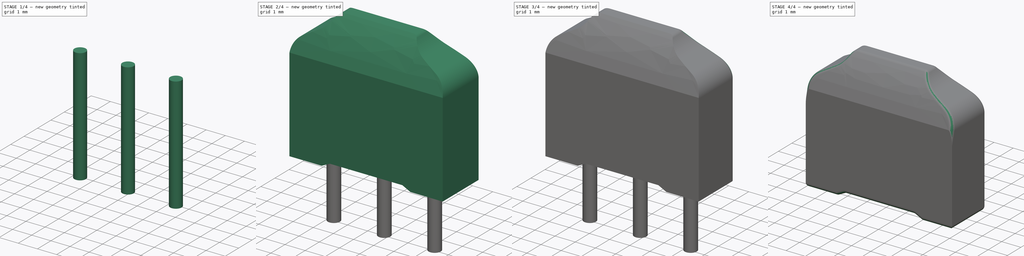
[diagram: build sequence overview — one tinted view per stage of 4, left to right]
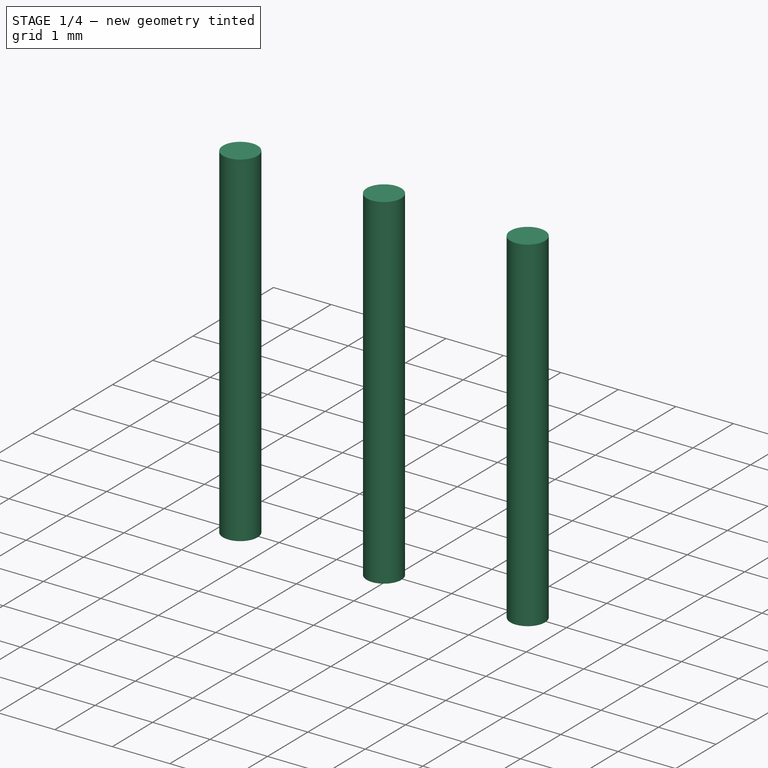
[diagram: stage 1 of 4 — iso view after this stage's code; geometry added in this stage tinted green]
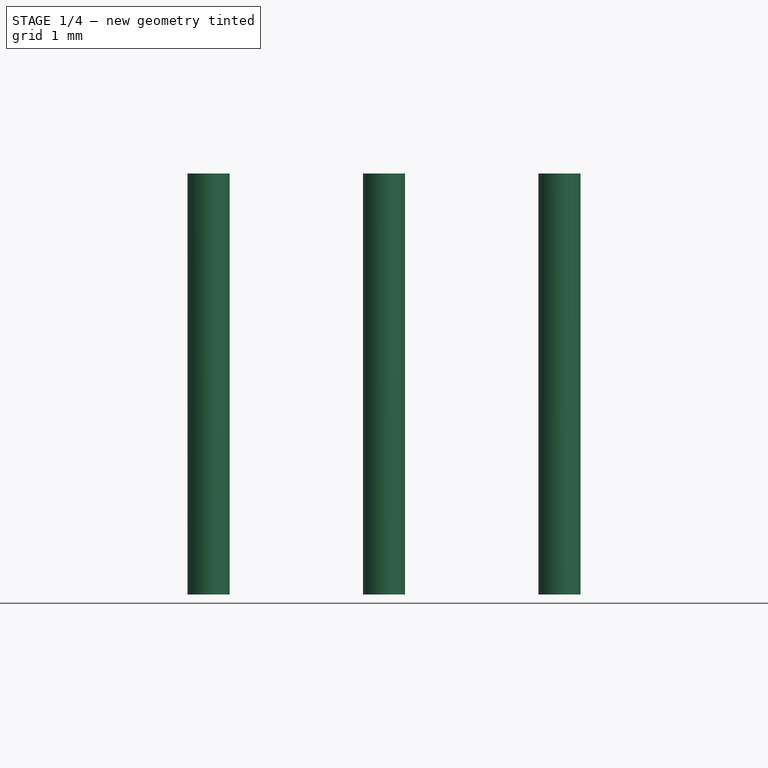
[diagram: stage 1 of 4 — front view after this stage's code; geometry added in this stage tinted green]
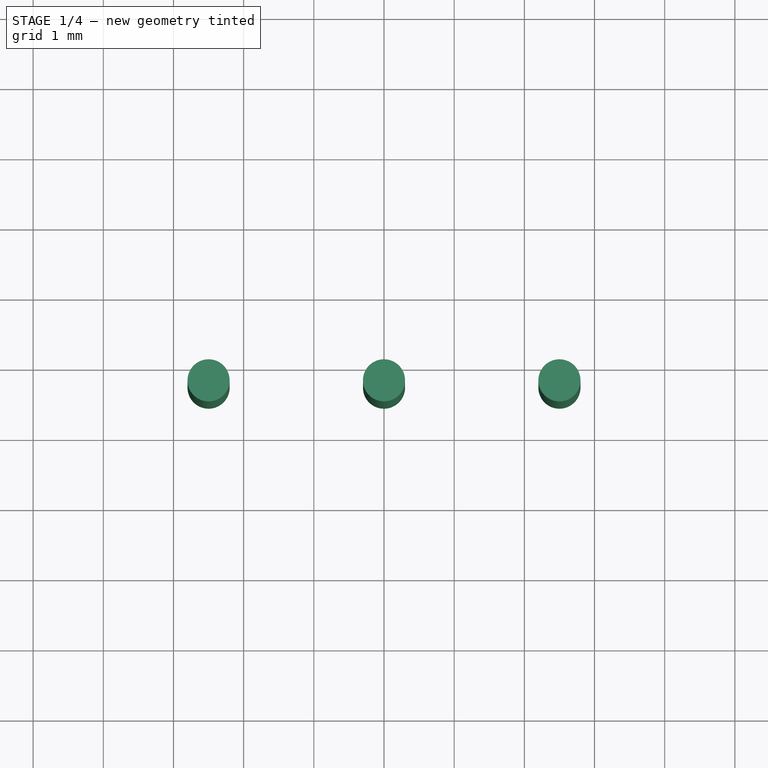
[diagram: stage 1 of 4 — top view after this stage's code; geometry added in this stage tinted green]
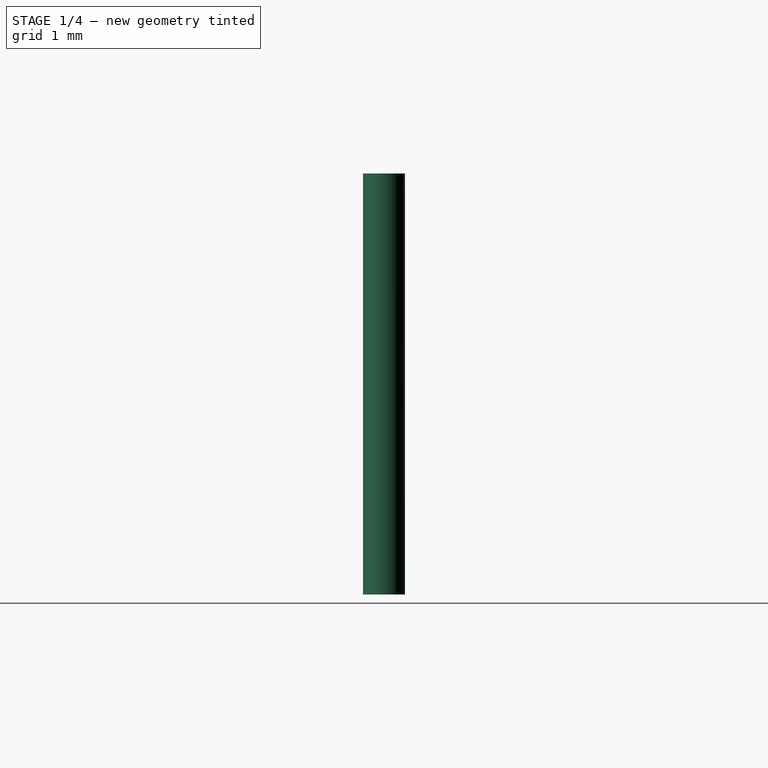
[diagram: stage 1 of 4 — right view after this stage's code; geometry added in this stage tinted green]
FCSTD DOCUMENT  (FreeCAD 0.18R4 (GitTag))
Label: DSS6
License: All rights reserved
LicenseURL: http://en.wikipedia.org/wiki/All_rights_reserved
objects: PartDesign::Body×3, PartDesign::Fillet×3, Part::Cylinder×3, Sketcher::SketchObject×2, PartDesign::Pad×2, Part::MultiCommon×1, PartDesign::FeatureBase×1, App::Part×1, Part::Compound×1
note: 18 computed .brp shape members not serialized (recipe doc carries the construction recipe); baked Part::Feature solids carry a one-line shape summary decoded from their .brp

FEATURE [PartDesign::Body] Body002
  BaseFeature = -> Common
  Group = -> [BaseFeature,Fillet,Fillet001,Fillet002]
  Origin = -> Origin002
  Tip = -> Fillet002
FEATURE [Part::Cylinder] Cylinder
  Angle = 360
  AttacherType = Attacher::AttachEngine3D
  Height = 6
  Placement = pos=(0,-1.25,-3) rot=(0,0,1;0rad)
  Radius = 0.3
FEATURE [Part::Cylinder] Cylinder001
  Angle = 360
  AttacherType = Attacher::AttachEngine3D
  Height = 6
  Placement = pos=(2.5,-1.25,-3) rot=(0,0,1;0rad)
  Radius = 0.3
FEATURE [Part::Cylinder] Cylinder002
  Angle = 360
  AttacherType = Attacher::AttachEngine3D
  Height = 6
  Placement = pos=(-2.5,-1.25,-3) rot=(0,0,1;0rad)
  Radius = 0.3
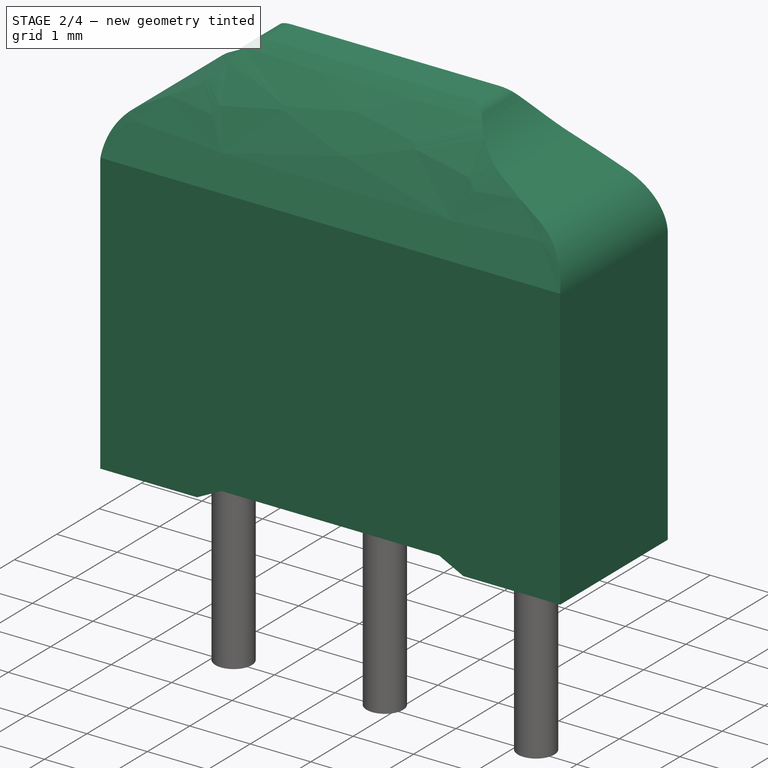
[diagram: stage 2 of 4 — iso view after this stage's code; geometry added in this stage tinted green]
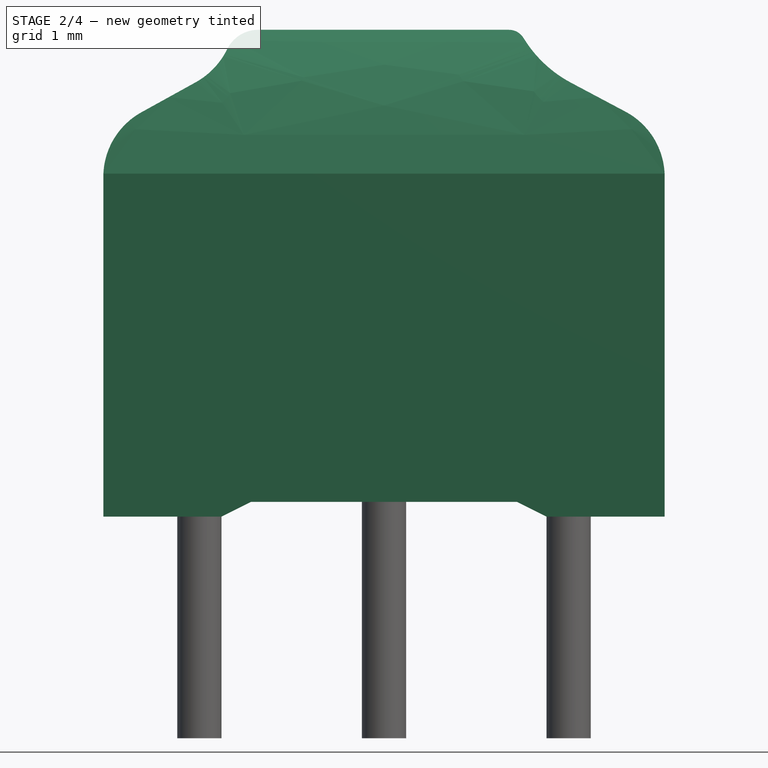
[diagram: stage 2 of 4 — front view after this stage's code; geometry added in this stage tinted green]
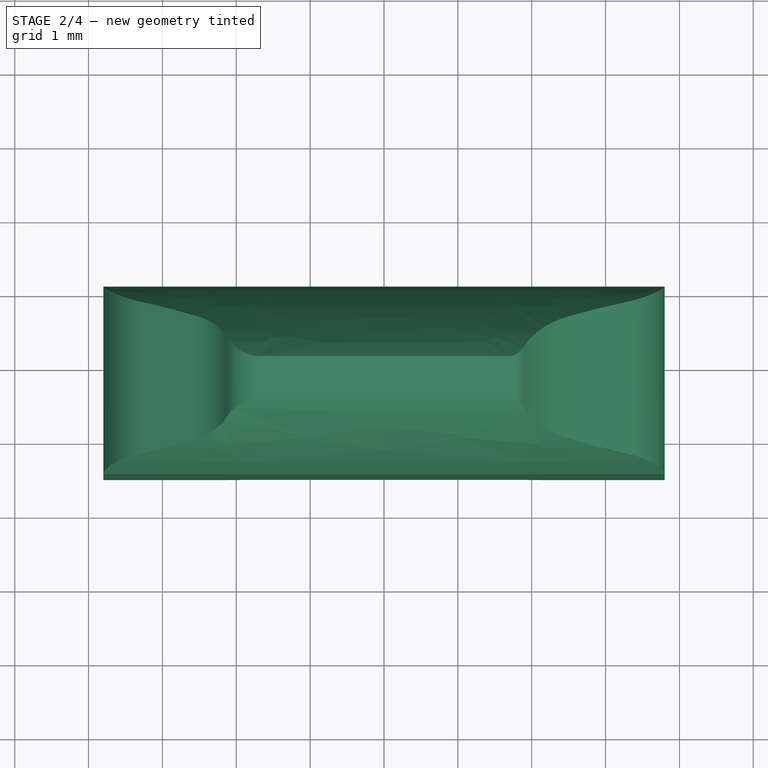
[diagram: stage 2 of 4 — top view after this stage's code; geometry added in this stage tinted green]
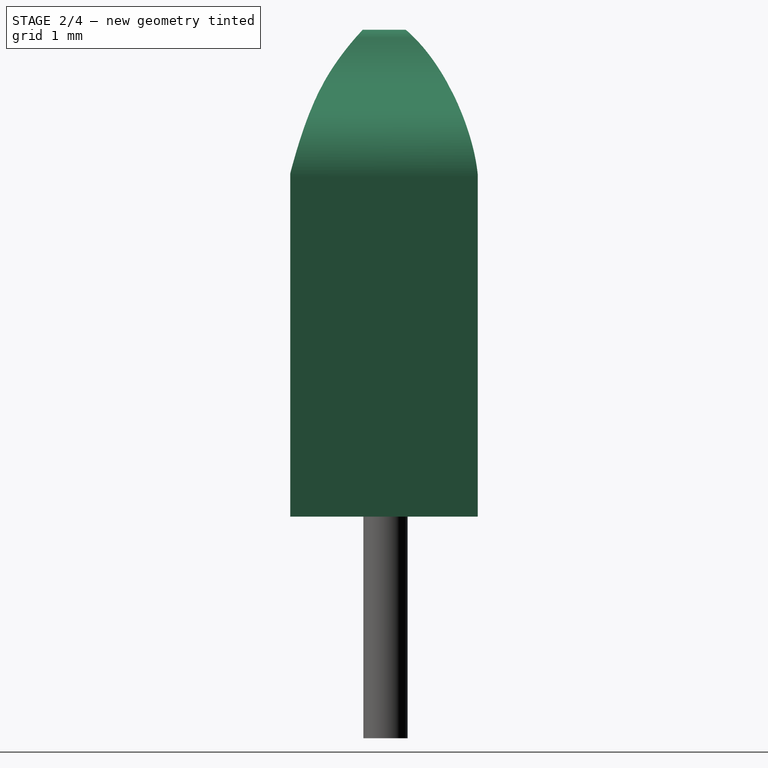
[diagram: stage 2 of 4 — right view after this stage's code; geometry added in this stage tinted green]
FEATURE [Sketcher::SketchObject] Sketch
  MapMode = 5
  Placement = pos=(0,0,0) rot=(1,0,0;1.5708rad)
  Support = -> [XZ_Plane]
  sketch-geometry (19):
    g0: LineSegment StartX=-3.8 StartY=0 StartZ=0 EndX=-2.2 EndY=0 EndZ=0
    g1: LineSegment StartX=-2.2 StartY=0 StartZ=0 EndX=-1.8 EndY=0.2 EndZ=0
    g2: LineSegment StartX=-1.8 StartY=0.2 StartZ=0 EndX=1.8 EndY=0.2 EndZ=0
    g3: LineSegment StartX=1.8 StartY=0.2 StartZ=0 EndX=2.2 EndY=0 EndZ=0
    g4: LineSegment StartX=2.2 StartY=0 StartZ=0 EndX=3.8 EndY=0 EndZ=0
    g5: LineSegment StartX=3.8 StartY=0 StartZ=0 EndX=3.8 EndY=4.6 EndZ=0
    g6: LineSegment StartX=3.26938 StartY=5.483 StartZ=0 EndX=2.52997 EndY=5.87605 EndZ=0
    g7: LineSegment StartX=1.90955 StartY=6.44847 StartZ=0 EndX=1.8862 EndY=6.48498 EndZ=0
    g8: LineSegment StartX=1.69191 StartY=6.59134 StartZ=0 EndX=-1.70323 EndY=6.59134 EndZ=0
    g9: LineSegment StartX=-2.11658 StartY=6.34156 StartZ=0 EndX=-2.13674 EndY=6.30319 EndZ=0
    g10: LineSegment StartX=-2.55077 StartY=5.88027 StartZ=0 EndX=-3.28369 EndY=5.47524 EndZ=0
    g11: LineSegment StartX=-3.8 StartY=4.6 StartZ=0 EndX=-3.8 EndY=0 EndZ=0
    g12: LineSegment [constr] StartX=-2.00659 StartY=6.10678 StartZ=0 EndX=2.14493 EndY=6.10678 EndZ=0
    g13: ArcOfCircle CenterX=-2.8 CenterY=4.6 CenterZ=0 NormalX=0 NormalY=0 NormalZ=1 AngleXU=0 Radius=1 StartAngle=2.07566 EndAngle=3.14159
    g14: ArcOfCircle CenterX=-3.04942 CenterY=6.78259 CenterZ=0 NormalX=0 NormalY=0 NormalZ=1 AngleXU=0 Radius=1.03094 StartAngle=5.21725 EndAngle=5.79953
    g15: ArcOfCircle CenterX=-1.70323 CenterY=6.12444 CenterZ=0 NormalX=0 NormalY=0 NormalZ=1 AngleXU=0 Radius=0.4669 StartAngle=1.5708 EndAngle=2.65794
    g16: ArcOfCircle CenterX=1.69191 CenterY=6.36072 CenterZ=0 NormalX=0 NormalY=0 NormalZ=1 AngleXU=0 Radius=0.230626 StartAngle=0.569031 EndAngle=1.5708
    g17: ArcOfCircle CenterX=3.31062 CenterY=7.34459 CenterZ=0 NormalX=0 NormalY=0 NormalZ=1 AngleXU=0 Radius=1.66314 StartAngle=3.71062 EndAngle=4.2238
    g18: ArcOfCircle CenterX=2.8 CenterY=4.6 CenterZ=0 NormalX=0 NormalY=0 NormalZ=1 AngleXU=0 Radius=1 StartAngle=4e-16 EndAngle=1.08221
  constraints (40):
    c: PointOnObject(g0,g-1)
    c: Horizontal(g0)
    c: Coincident(g0,g1)
    c: Coincident(g1,g2)
    c: Horizontal(g2)
    c: DistanceX(g0,g0) = 1.6
    c: DistanceX(g0,g1) = 0.4
    c: DistanceX(g0,g-1) = 3.8
    c: DistanceY(g0,g1) = 0.2
    c: Coincident(g2,g3)
    c: Coincident(g3,g4)
    c: Horizontal(g4)
    c: Coincident(g4,g5)
    c: Vertical(g5)
    c: DistanceX(g2,g3) = 0.4
    c: DistanceX(g4,g4) = 1.6
    c: DistanceX(g-1,g4) = 3.8
    c: Horizontal(g8)
    c: Coincident(g11,g0)
    c: Vertical(g11)
    c: Equal(g10,g6)
    c: Equal(g9,g7)
    c: Horizontal(g12)
    c: Tangent(g10,g13) = -1.5708
    c: Tangent(g11,g13) = -1.5708
    c: Tangent(g10,g14) = 1.5708
    c: Tangent(g9,g14) = 1.5708
    c: Tangent(g9,g15) = -1.5708
    c: Tangent(g8,g15) = -1.5708
    c: Tangent(g8,g16) = -1.5708
    c: Tangent(g7,g16) = -1.5708
    c: Tangent(g7,g17) = 1.5708
    c: Tangent(g6,g17) = 1.5708
    c: Tangent(g6,g18) = -1.5708
    c: Tangent(g5,g18) = -1.5708
    c: Radius(g13) = 1
    c: Radius(g18) = 1
    c: DistanceY(g11,g11) = 4.6
    c: DistanceY(g0,g3) = 0
    c: DistanceY(g5,g5) = 4.6
FEATURE [PartDesign::Pad] Pad
  Length = 2.54
  Length2 = 100
  Placement = pos=(0,0,0) rot=(1,0,0;1.5708rad)
  Profile = -> Sketch
  Type = 0
FEATURE [PartDesign::Body] Body
  Group = -> [Sketch,Pad]
  Origin = -> Origin
  Tip = -> Pad
FEATURE [Sketcher::SketchObject] Sketch001
  MapMode = 5
  Placement = pos=(0,0,0) rot=(0.57735,0.57735,0.57735;2.0944rad)
  Support = -> [YZ_Plane001]
  sketch-geometry (20):
    g0: LineSegment StartX=-2.55011 StartY=-0.086535 StartZ=0 EndX=-2.55011 EndY=4.60622 EndZ=0
    g1: LineSegment StartX=-1.54302 StartY=6.60639 StartZ=0 EndX=-0.992205 EndY=6.60639 EndZ=0
    g2: LineSegment StartX=0.001295 StartY=4.60432 StartZ=0 EndX=0.001295 EndY=-0.086535 EndZ=0
    g3: LineSegment StartX=0.001295 StartY=-0.086535 StartZ=0 EndX=-2.55011 EndY=-0.086535 EndZ=0
    g4-g8: Circle [constr] x5 (B-spline internal-alignment scaffolding for g9; pole/knot coordinates omitted)
    g9: BSplineCurve PolesCount=5 KnotsCount=3 Degree=3 IsPeriodic=0
    g10: GeomPoint [constr] X=-2.55011 Y=4.60622 Z=0
    g11: GeomPoint [constr] X=-1.93719 Y=6.11939 Z=0
    g12: GeomPoint [constr] X=-1.54302 Y=6.60639 Z=0
    g13-g16: Circle [constr] x4 (B-spline internal-alignment scaffolding for g17; pole/knot coordinates omitted)
    g17: BSplineCurve PolesCount=4 KnotsCount=2 Degree=3 IsPeriodic=0
    g18: GeomPoint [constr] X=0.001295 Y=4.60432 Z=0
    g19: GeomPoint [constr] X=-0.992205 Y=6.60639 Z=0
  constraints (27):
    c: Vertical(g0)
    c: Horizontal(g1)
    c: Vertical(g2)
    c: Coincident(g2,g3)
    c: Coincident(g3,g0)
    c: Horizontal(g3)
    c: Coincident(g9,g0)
    c: Radius(g4) = 0.1
    c: Equal(g4,g5)
    c: Equal(g4,g6)
    c: Equal(g4,g7)
    c: Coincident(g7,g1)
    c: Equal(g4,g8)
    c: InternalAlignment(g4-g8 -> g9) x5
    c: InternalAlignment(g10,g9)
    c: InternalAlignment(g11,g9)
    c: InternalAlignment(g12,g9)
    c: Coincident(g17,g2)
    c: Radius(g13) = 0.1
    c: Equal(g13,g14)
    c: Equal(g13,g15)
    c: Equal(g13,g16)
    c: Coincident(g17,g1)
    c: InternalAlignment(g13-g16 -> g17) x4
    c: InternalAlignment(g18,g17)
    c: InternalAlignment(g19,g17)
    c: Coincident(g1,g9)
FEATURE [PartDesign::Pad] Pad001
  Length = 8
  Length2 = 100
  Midplane = true
  Placement = pos=(0,0,0) rot=(0.57735,0.57735,0.57735;2.0944rad)
  Profile = -> Sketch001
  Type = 0
FEATURE [PartDesign::Body] Body001
  Group = -> [Sketch001,Pad001]
  Origin = -> Origin001
  Tip = -> Pad001
FEATURE [Part::MultiCommon] Common
  Shapes = -> [Pad001,Pad]
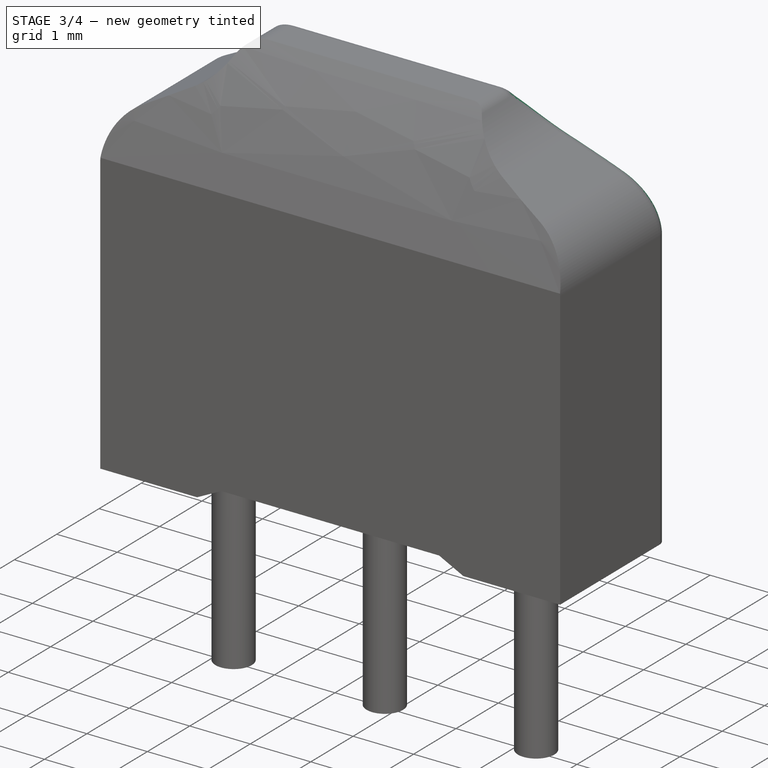
[diagram: stage 3 of 4 — iso view after this stage's code; geometry added in this stage tinted green]
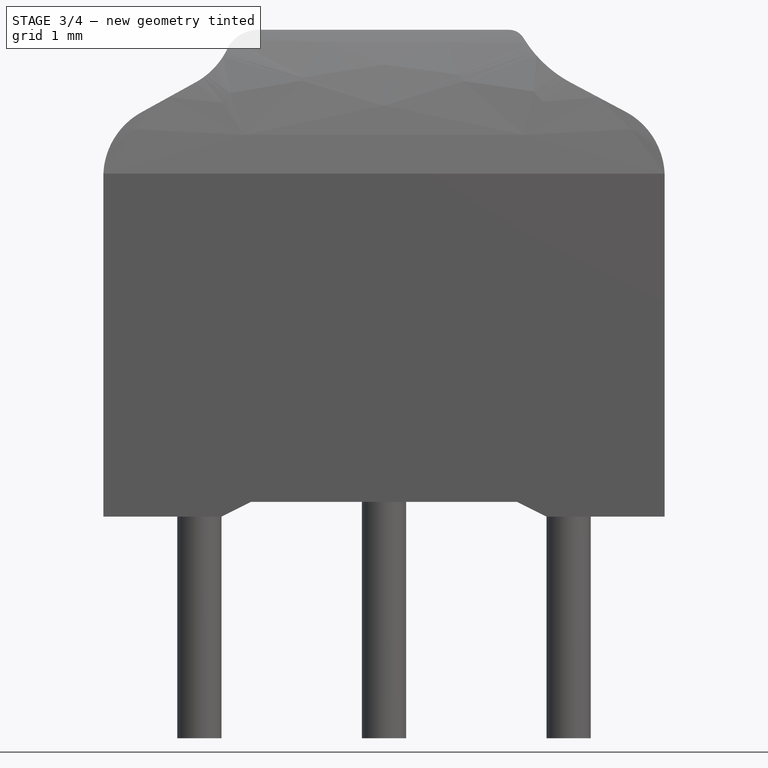
[diagram: stage 3 of 4 — front view after this stage's code; geometry added in this stage tinted green]
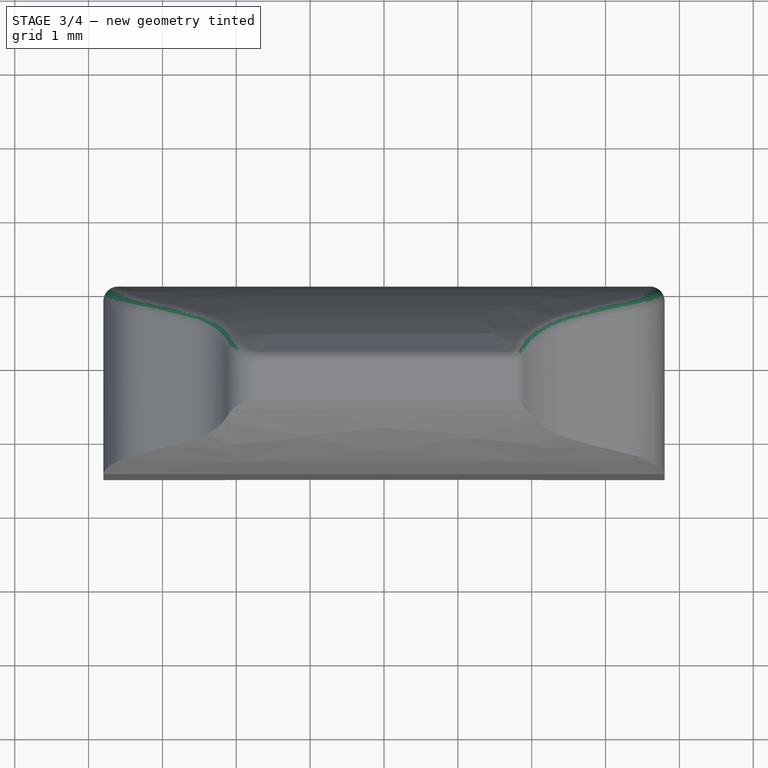
[diagram: stage 3 of 4 — top view after this stage's code; geometry added in this stage tinted green]
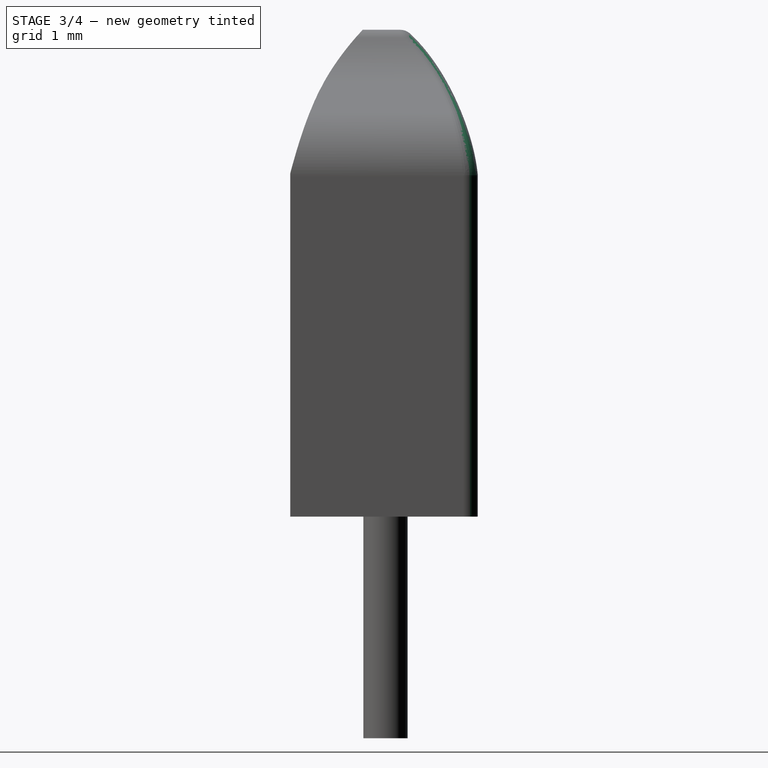
[diagram: stage 3 of 4 — right view after this stage's code; geometry added in this stage tinted green]
FEATURE [PartDesign::FeatureBase] BaseFeature
  BaseFeature = -> Common
FEATURE [PartDesign::Fillet] Fillet
  Base = -> BaseFeature [Edge9,Edge8,Edge7,Edge6,Edge5]
  BaseFeature = -> BaseFeature
  Radius = 0.2
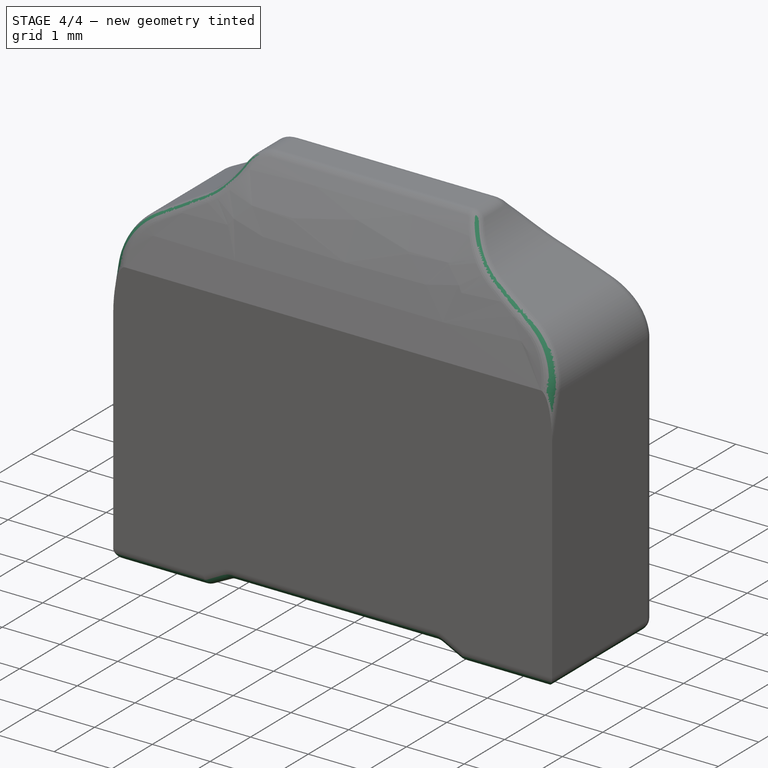
[diagram: stage 4 of 4 — iso view after this stage's code; geometry added in this stage tinted green]
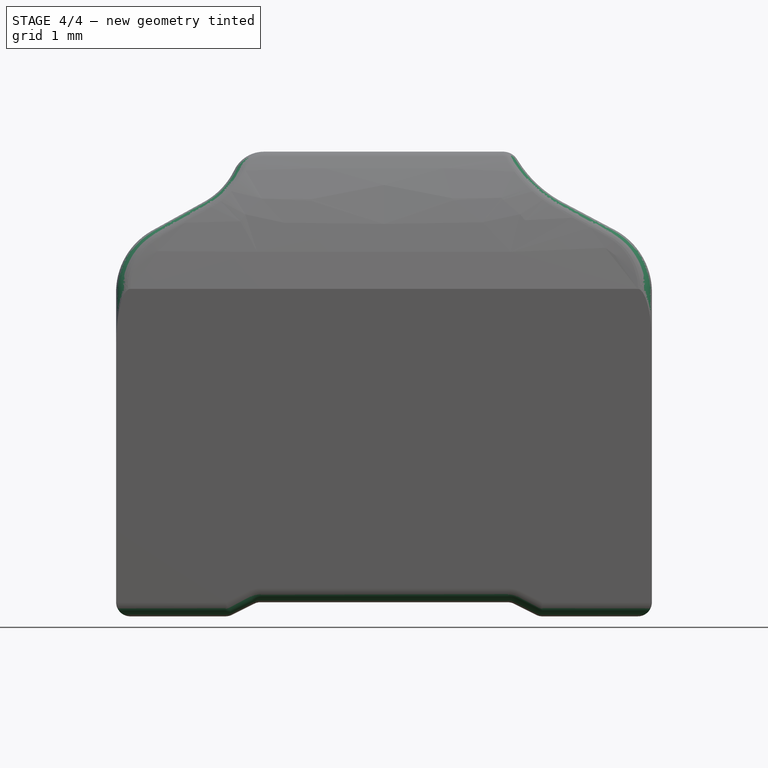
[diagram: stage 4 of 4 — front view after this stage's code; geometry added in this stage tinted green]
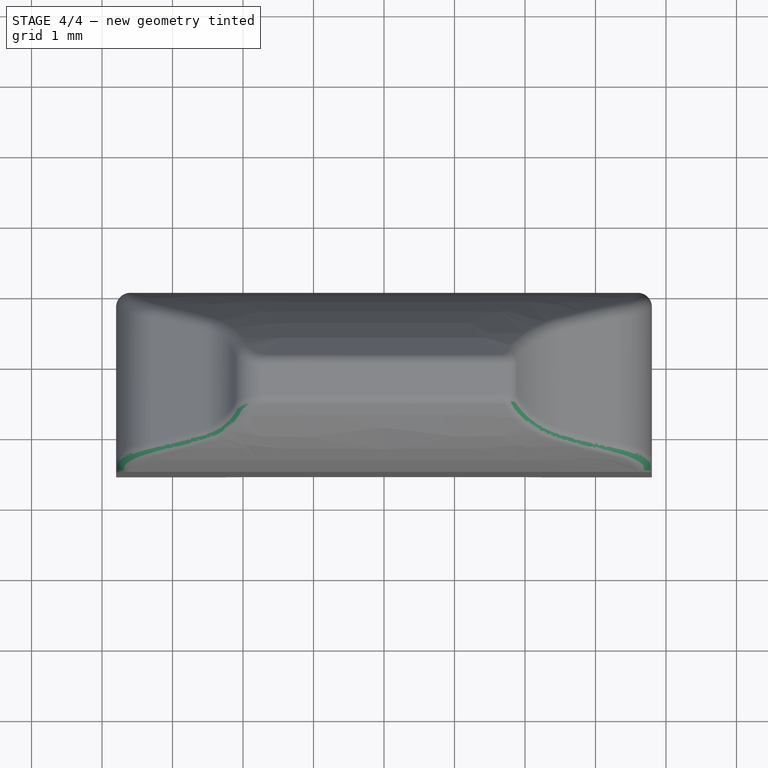
[diagram: stage 4 of 4 — top view after this stage's code; geometry added in this stage tinted green]
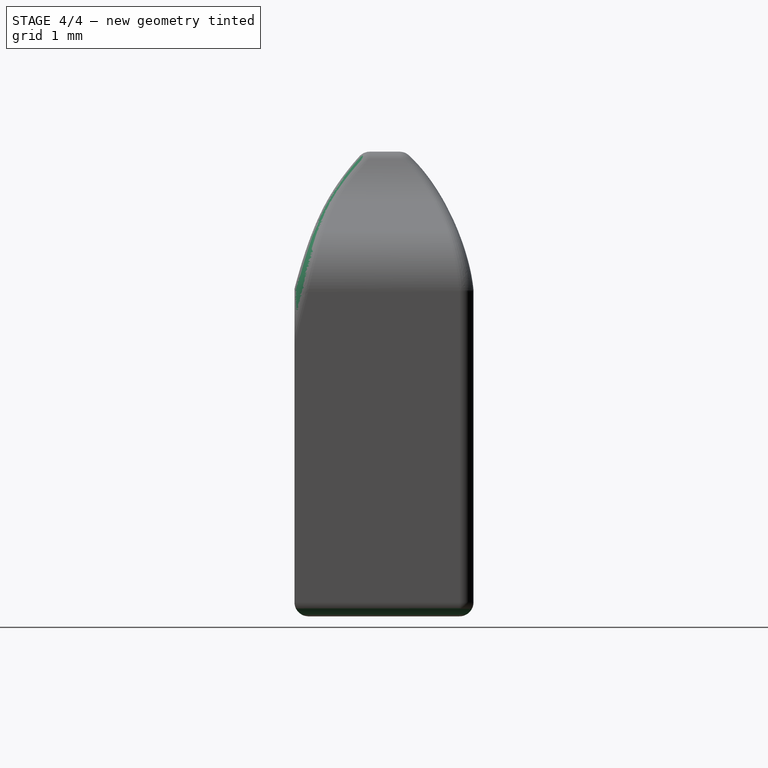
[diagram: stage 4 of 4 — right view after this stage's code; geometry added in this stage tinted green]
FEATURE [PartDesign::Fillet] Fillet001
  Base = -> Fillet [Edge70,Edge74,Edge79,Edge82,Edge86]
  BaseFeature = -> Fillet
  Radius = 0.2
FEATURE [PartDesign::Fillet] Fillet002
  Base = -> Fillet001 [Face14,Face24,Face26,Face25,Face23]
  BaseFeature = -> Fillet001
  Radius = 0.2
FEATURE [App::Part] Part
  Group = -> [Cylinder,Cylinder001,Cylinder002]
  Origin = -> Origin003
FEATURE [Part::Compound] Compound
  Links = -> [Body002,Part]
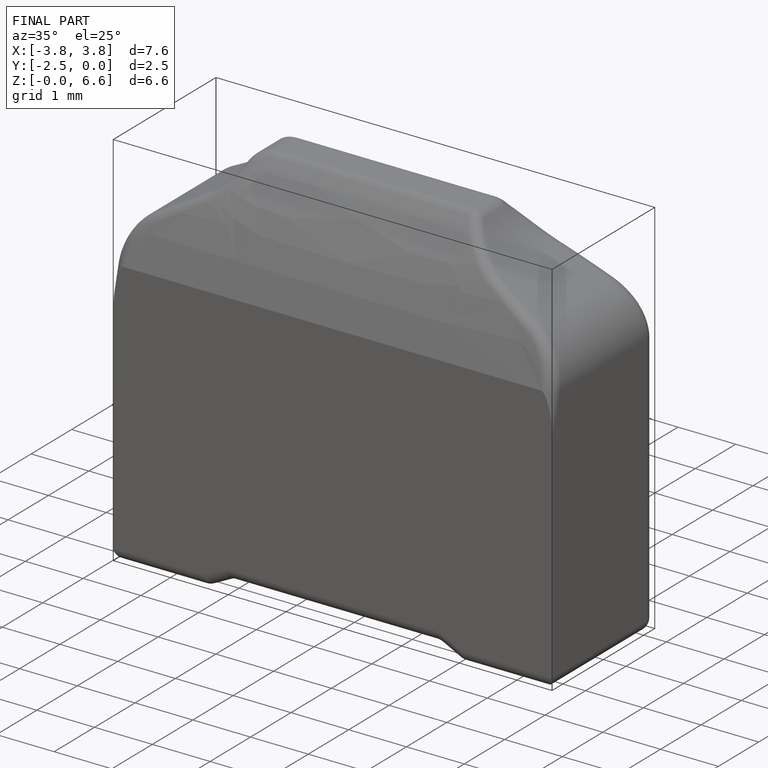
[diagram: finished part — iso view with bounding-box wireframe]
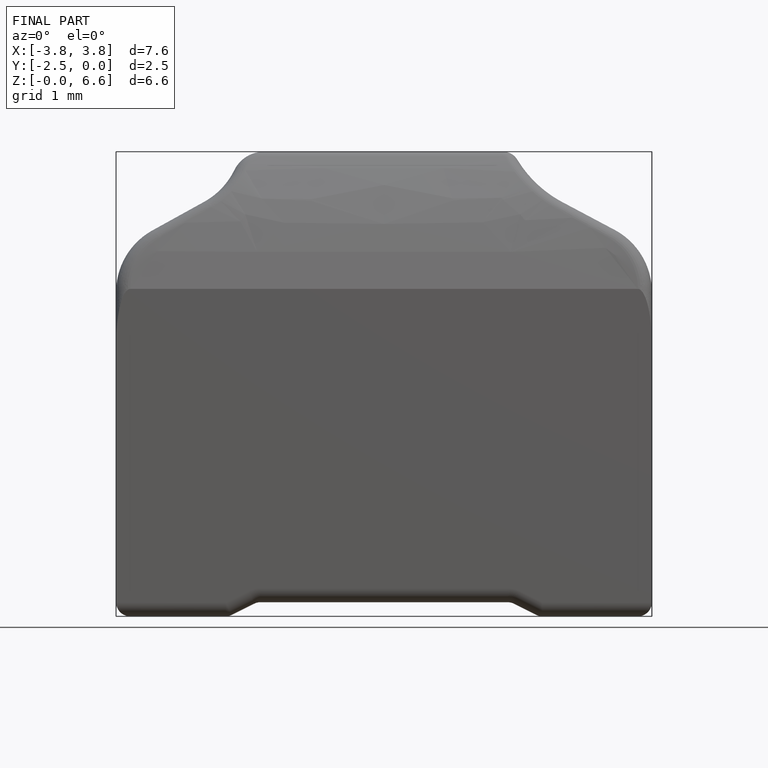
[diagram: finished part — front view with bounding-box wireframe]
